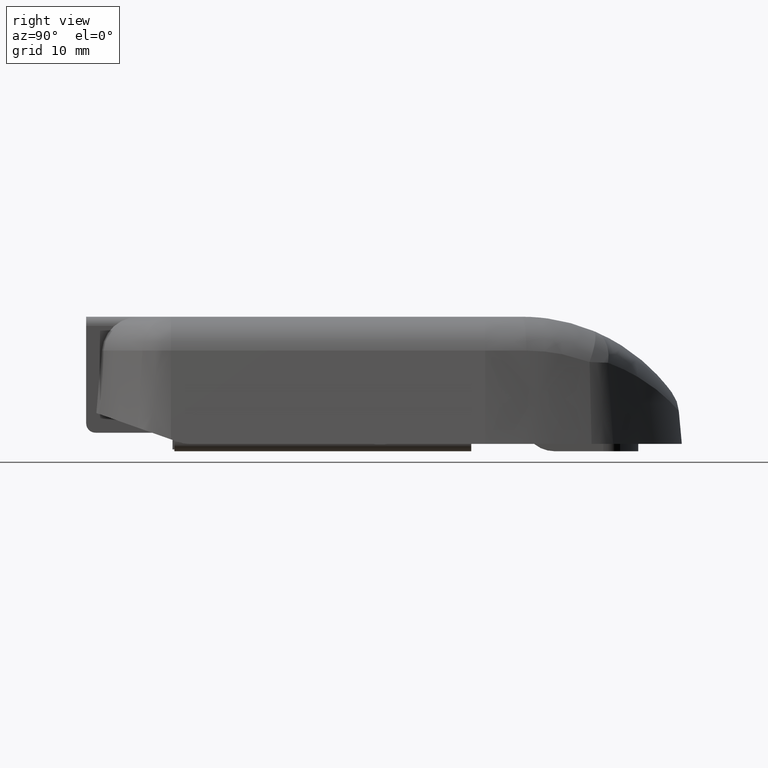
[diagram: clean part render]
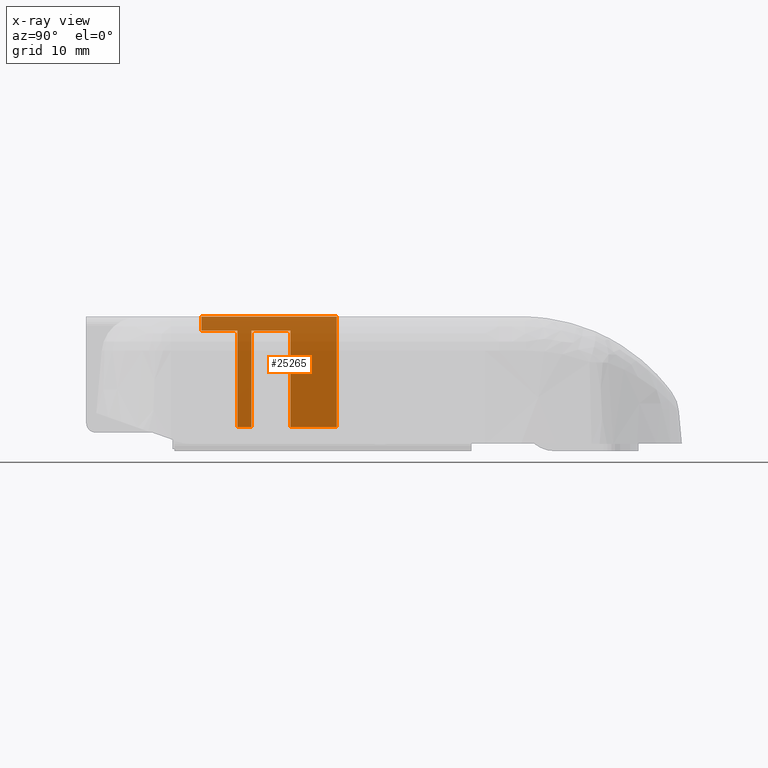
[diagram: x-ray — body ghosted, one internal face saturated and labeled with its STEP entity id]
A machine part, right view, then the same camera in x-ray: the body is ghosted and one INTERNAL B-rep face — a face not visible from any outside direction — is saturated and labeled: STEP entity #25265.
In plain terms, the highlighted planar face has unit normal (-1, -0, 0).
Its self-contained STEP definition (entity closure, byte-faithful):
#397 = CARTESIAN_POINT ( 'NONE',  ( -10.30000000000000800, 24.99999999999999600, -1.499999999999999600 ) ) ;
#475 = ORIENTED_EDGE ( 'NONE', *, *, #12129, .F. ) ;
#1076 = DIRECTION ( 'NONE',  ( -0.0000000000000000000, -0.0000000000000000000, 1.000000000000000000 ) ) ;
#1079 = CARTESIAN_POINT ( 'NONE',  ( -10.29999999999999700, 24.99999999999999600, -1.500000000000000000 ) ) ;
#1096 = EDGE_CURVE ( 'NONE', #21063, #7206, #1868, .T. ) ;
#1199 = CARTESIAN_POINT ( 'NONE',  ( -10.30000000000000100, 19.99999999999999600, -11.89999999999999900 ) ) ;
#1228 = VECTOR ( 'NONE', #24777, 1000.000000000000000 ) ;
#1373 = LINE ( 'NONE', #26140, #17136 ) ;
#1728 = CARTESIAN_POINT ( 'NONE',  ( -10.30000000000000800, 24.99999999999999600, 0.0000000000000000000 ) ) ;
#1868 = LINE ( 'NONE', #16531, #1228 ) ;
#2112 = ORIENTED_EDGE ( 'NONE', *, *, #11082, .F. ) ;
#2187 = VERTEX_POINT ( 'NONE', #24598 ) ;
#2344 = VERTEX_POINT ( 'NONE', #397 ) ;
#2722 = CARTESIAN_POINT ( 'NONE',  ( -10.30000000000000100, 15.79999999999999900, -11.89999999999999900 ) ) ;
#2926 = VECTOR ( 'NONE', #24113, 1000.000000000000000 ) ;
#3138 = DIRECTION ( 'NONE',  ( -3.336006684570783100E-016, 0.0000000000000000000, -1.000000000000000000 ) ) ;
#3324 = VECTOR ( 'NONE', #1076, 1000.000000000000000 ) ;
#3525 = CARTESIAN_POINT ( 'NONE',  ( -10.30000000000000800, 24.99999999999999600, -1.499999999999999600 ) ) ;
#3566 = LINE ( 'NONE', #3525, #2926 ) ;
#3948 = FACE_OUTER_BOUND ( 'NONE', #12933, .T. ) ;
#3979 = LINE ( 'NONE', #25709, #3324 ) ;
#5202 = VERTEX_POINT ( 'NONE', #1728 ) ;
#5315 = LINE ( 'NONE', #16566, #15653 ) ;
#5404 = EDGE_CURVE ( 'NONE', #2187, #11324, #5315, .T. ) ;
#5484 = CARTESIAN_POINT ( 'NONE',  ( -10.30000000000000100, 10.39999999999999900, -1.499999999999999600 ) ) ;
#6048 = VERTEX_POINT ( 'NONE', #10095 ) ;
#6111 = ORIENTED_EDGE ( 'NONE', *, *, #15619, .T. ) ;
#6236 = CARTESIAN_POINT ( 'NONE',  ( -10.30000000000000100, 14.29999999999999900, -11.89999999999999900 ) ) ;
#6700 = DIRECTION ( 'NONE',  ( 4.752667057470704400E-016, -1.000000000000000000, 0.0000000000000000000 ) ) ;
#7206 = VERTEX_POINT ( 'NONE', #6236 ) ;
#9373 = CARTESIAN_POINT ( 'NONE',  ( -10.30000000000000100, 24.99999999999999600, -11.89999999999999900 ) ) ;
#9791 = LINE ( 'NONE', #17117, #15299 ) ;
#10095 = CARTESIAN_POINT ( 'NONE',  ( -10.30000000000000100, 10.39999999999999900, 0.0000000000000000000 ) ) ;
#10322 = VECTOR ( 'NONE', #19096, 1000.000000000000000 ) ;
#10327 = LINE ( 'NONE', #23567, #14524 ) ;
#10760 = ORIENTED_EDGE ( 'NONE', *, *, #26610, .T. ) ;
#10989 = AXIS2_PLACEMENT_3D ( 'NONE', #22881, #25051, #12735 ) ;
#11082 = EDGE_CURVE ( 'NONE', #2187, #18551, #15841, .T. ) ;
#11169 = DIRECTION ( 'NONE',  ( -0.0000000000000000000, -0.0000000000000000000, 1.000000000000000000 ) ) ;
#11220 = ORIENTED_EDGE ( 'NONE', *, *, #13135, .F. ) ;
#11324 = VERTEX_POINT ( 'NONE', #1199 ) ;
#11745 = ORIENTED_EDGE ( 'NONE', *, *, #14152, .F. ) ;
#11941 = DIRECTION ( 'NONE',  ( 0.0000000000000000000, 0.0000000000000000000, 1.000000000000000000 ) ) ;
#12129 = EDGE_CURVE ( 'NONE', #2344, #12344, #25756, .T. ) ;
#12344 = VERTEX_POINT ( 'NONE', #9373 ) ;
#12362 = CARTESIAN_POINT ( 'NONE',  ( -10.30000000000000400, 15.79999999999999900, -1.499999999999999600 ) ) ;
#12735 = DIRECTION ( 'NONE',  ( 4.752667057470704400E-016, -1.000000000000000000, 0.0000000000000000000 ) ) ;
#12933 = EDGE_LOOP ( 'NONE', ( #2112, #25256, #11220, #475, #6111, #17613, #11745, #24264, #22209, #15692, #10760 ) ) ;
#13135 = EDGE_CURVE ( 'NONE', #12344, #11324, #9791, .T. ) ;
#13821 = DIRECTION ( 'NONE',  ( -0.0000000000000000000, -0.0000000000000000000, -1.000000000000000000 ) ) ;
#14152 = EDGE_CURVE ( 'NONE', #15822, #6048, #3979, .T. ) ;
#14158 = VECTOR ( 'NONE', #3138, 1000.000000000000000 ) ;
#14524 = VECTOR ( 'NONE', #11169, 1000.000000000000000 ) ;
#14919 = CARTESIAN_POINT ( 'NONE',  ( -10.30000000000000800, 24.99999999999999600, 0.0000000000000000000 ) ) ;
#15299 = VECTOR ( 'NONE', #23304, 1000.000000000000000 ) ;
#15619 = EDGE_CURVE ( 'NONE', #2344, #5202, #10327, .T. ) ;
#15653 = VECTOR ( 'NONE', #18635, 1000.000000000000000 ) ;
#15692 = ORIENTED_EDGE ( 'NONE', *, *, #1096, .F. ) ;
#15822 = VERTEX_POINT ( 'NONE', #5484 ) ;
#15841 = LINE ( 'NONE', #17029, #10322 ) ;
#16327 = EDGE_CURVE ( 'NONE', #5202, #6048, #20979, .T. ) ;
#16531 = CARTESIAN_POINT ( 'NONE',  ( -10.30000000000000100, 24.99999999999999600, -11.89999999999999900 ) ) ;
#16566 = CARTESIAN_POINT ( 'NONE',  ( -10.30000000000000600, 19.99999999999999600, -13.69999999999999900 ) ) ;
#17020 = EDGE_CURVE ( 'NONE', #19317, #7206, #1373, .T. ) ;
#17029 = CARTESIAN_POINT ( 'NONE',  ( -10.30000000000000800, 24.99999999999999600, -1.499999999999999600 ) ) ;
#17117 = CARTESIAN_POINT ( 'NONE',  ( -10.30000000000000100, 24.99999999999999600, -11.89999999999999900 ) ) ;
#17136 = VECTOR ( 'NONE', #13821, 1000.000000000000000 ) ;
#17613 = ORIENTED_EDGE ( 'NONE', *, *, #16327, .T. ) ;
#17845 = EDGE_CURVE ( 'NONE', #19317, #15822, #3566, .T. ) ;
#18551 = VERTEX_POINT ( 'NONE', #12362 ) ;
#18635 = DIRECTION ( 'NONE',  ( 0.0000000000000000000, 0.0000000000000000000, -1.000000000000000000 ) ) ;
#18712 = CARTESIAN_POINT ( 'NONE',  ( -10.29999999999999700, 14.29999999999999900, -1.500000000021373100 ) ) ;
#19096 = DIRECTION ( 'NONE',  ( 4.752667057470704400E-016, -1.000000000000000000, 0.0000000000000000000 ) ) ;
#19317 = VERTEX_POINT ( 'NONE', #18712 ) ;
#20089 = VECTOR ( 'NONE', #11941, 1000.000000000000000 ) ;
#20354 = VECTOR ( 'NONE', #6700, 1000.000000000000000 ) ;
#20917 = PLANE ( 'NONE',  #10989 ) ;
#20979 = LINE ( 'NONE', #14919, #20354 ) ;
#21063 = VERTEX_POINT ( 'NONE', #2722 ) ;
#22209 = ORIENTED_EDGE ( 'NONE', *, *, #17020, .T. ) ;
#22881 = CARTESIAN_POINT ( 'NONE',  ( -10.30000000000000800, 24.99999999999999600, -13.69999999999999900 ) ) ;
#23304 = DIRECTION ( 'NONE',  ( 0.0000000000000000000, -1.000000000000000000, 0.0000000000000000000 ) ) ;
#23567 = CARTESIAN_POINT ( 'NONE',  ( -10.30000000000000800, 24.99999999999999600, -13.69999999999999900 ) ) ;
#24113 = DIRECTION ( 'NONE',  ( 4.752667057470704400E-016, -1.000000000000000000, 0.0000000000000000000 ) ) ;
#24264 = ORIENTED_EDGE ( 'NONE', *, *, #17845, .F. ) ;
#24598 = CARTESIAN_POINT ( 'NONE',  ( -10.30000000000000400, 19.99999999999999600, -1.499999999999999600 ) ) ;
#24777 = DIRECTION ( 'NONE',  ( 0.0000000000000000000, -1.000000000000000000, 0.0000000000000000000 ) ) ;
#25051 = DIRECTION ( 'NONE',  ( -1.000000000000000000, -4.752667057470704400E-016, 0.0000000000000000000 ) ) ;
#25256 = ORIENTED_EDGE ( 'NONE', *, *, #5404, .T. ) ;
#25265 = ADVANCED_FACE ( 'NONE', ( #3948 ), #20917, .F. ) ;
#25549 = LINE ( 'NONE', #26337, #20089 ) ;
#25709 = CARTESIAN_POINT ( 'NONE',  ( -10.30000000000000100, 10.39999999999999900, -13.69999999999999900 ) ) ;
#25756 = LINE ( 'NONE', #1079, #14158 ) ;
#26140 = CARTESIAN_POINT ( 'NONE',  ( -10.29999999999999700, 14.29999999999999900, 500000.0000000000600 ) ) ;
#26337 = CARTESIAN_POINT ( 'NONE',  ( -10.30000000000000200, 15.79999999999999900, -13.69999999999999900 ) ) ;
#26610 = EDGE_CURVE ( 'NONE', #21063, #18551, #25549, .T. ) ;